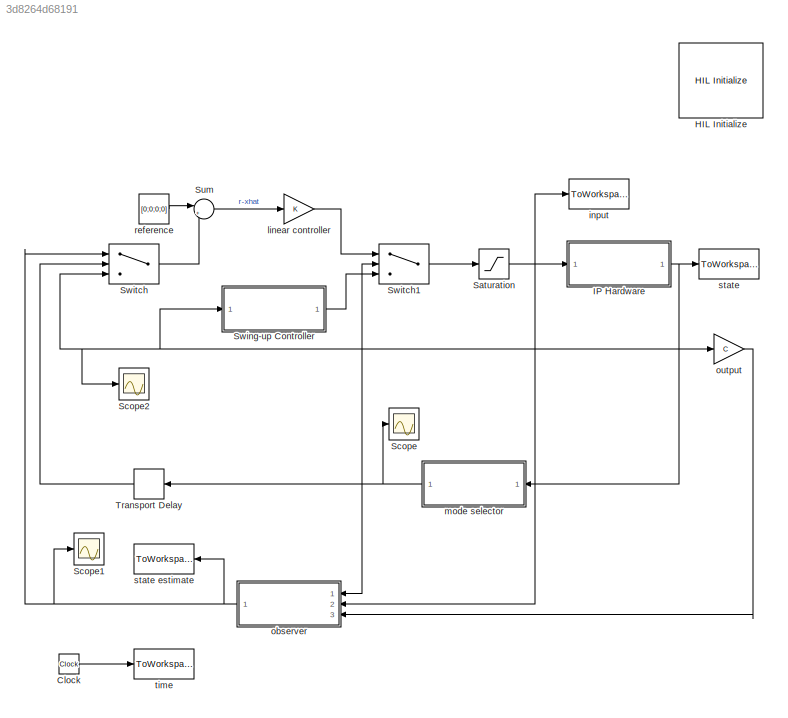
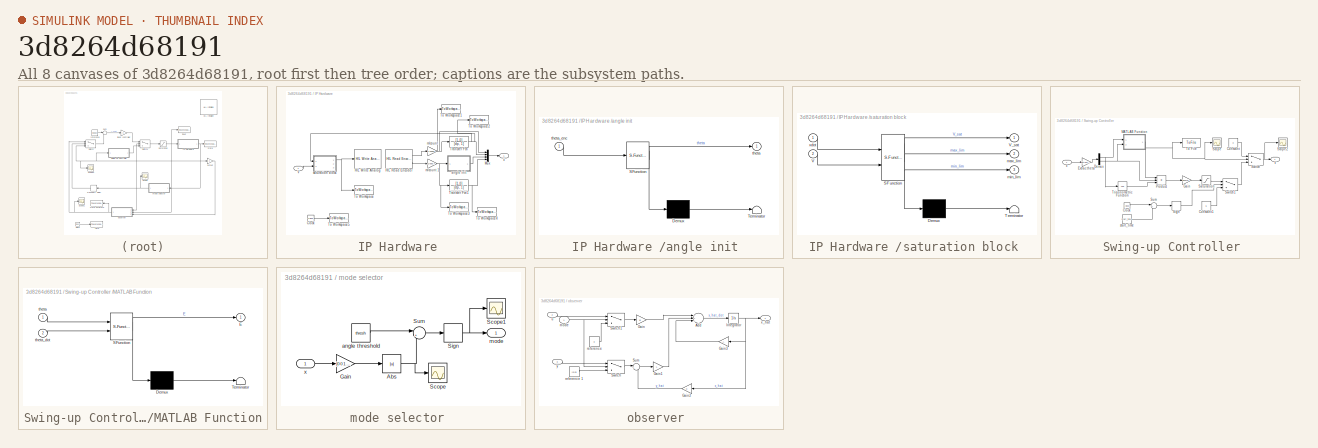
[diagram: thumbnail index - all 8 canvases of the model, root first then tree order]
MODEL slx_3d8264d68191
KIND model
BLOCK [Clock] Clock
BLOCK [Reference] HIL Initialize  REF=quarc_library/Data Acquisition/Generic/Configuration/HIL Initialize
  AttributesFormatString = %<object_name> (%<board_type>-%<board_number>)
  Ports = []
  Priority = -99
  SourceBlock = quarc_library/Data Acquisition/Generic/Configuration/HIL Initialize
  SourceType = HIL Initialize
  UserDataPersistent = on
  active = off
  analog_input_channels = [0:3]
  analog_input_maximums = 10
  analog_input_minimums = -10
  analog_output_channels = [0:3]
  analog_output_maximums = [10]
  analog_output_minimums = [-10]
  board_number = 0
  board_type = q4
  clock_modes = [0 0]
  digital_input_channels = []
  digital_output_channels = []
  digital_output_configuration = []
  encoder_channels = [0:3]
  encoder_filter_frequency = (1/60e-9)/1
  exclusive = off
  final_analog_outputs = [0]
  final_digital_outputs = [1]
  final_other_outputs = []
  final_pwm_outputs = [0]
  hardware_clocks = [0:1]
  initial_analog_outputs = [0]
  initial_clock_frequencies = []
  initial_digital_outputs = [1]
  initial_encoder_counts = [0]
  initial_other_outputs = []
  initial_pwm_outputs = [0]
  object_name = HIL-1
  other_output_channels = []
  pwm_alignment = []
  pwm_channels = []
  pwm_configuration = []
  pwm_frequency = (1/60e-9)/1024
  pwm_leading_deadband = []
  pwm_modes = [0]
  pwm_polarity = []
  pwm_trailing_deadband = []
  quadrature = [4]
  set_analog_input_params_at_start = off
  set_analog_input_params_at_switch_in = off
  set_analog_output_params_at_start = on
  set_analog_output_params_at_switch_in = off
  set_analog_outputs_at_start = on
  set_analog_outputs_at_switch_in = off
  set_analog_outputs_at_switch_out = off
  set_analog_outputs_at_terminate = on
  set_analog_outputs_on_watchdog = off
  set_clock_frequencies_at_start = off
  set_clock_frequencies_at_switch_in = off
  set_clock_params_at_start = on
  set_clock_params_at_switch_in = off
  set_digital_output_params_at_start = off
  set_digital_output_params_at_switch_in = off
  set_digital_outputs_at_start = on
  set_digital_outputs_at_switch_in = off
  set_digital_outputs_at_switch_out = off
  set_digital_outputs_at_terminate = on
  set_digital_outputs_on_watchdog = off
  set_encoder_counts_at_start = on
  set_encoder_counts_at_switch_in = off
  set_encoder_params_at_start = on
  set_encoder_params_at_switch_in = off
  set_other_outputs_at_start = off
  set_other_outputs_at_switch_in = off
  set_other_outputs_at_switch_out = off
  set_other_outputs_at_terminate = off
  set_other_outputs_on_watchdog = off
  set_pwm_outputs_at_start = on
  set_pwm_outputs_at_switch_in = off
  set_pwm_outputs_at_switch_out = off
  set_pwm_outputs_at_terminate = on
  set_pwm_outputs_on_watchdog = off
  set_pwm_params_at_start = on
  set_pwm_params_at_switch_in = off
  watchdog_analog_outputs = 0
  watchdog_digital_outputs = [2]
  watchdog_other_outputs = []
  watchdog_pwm_outputs = []
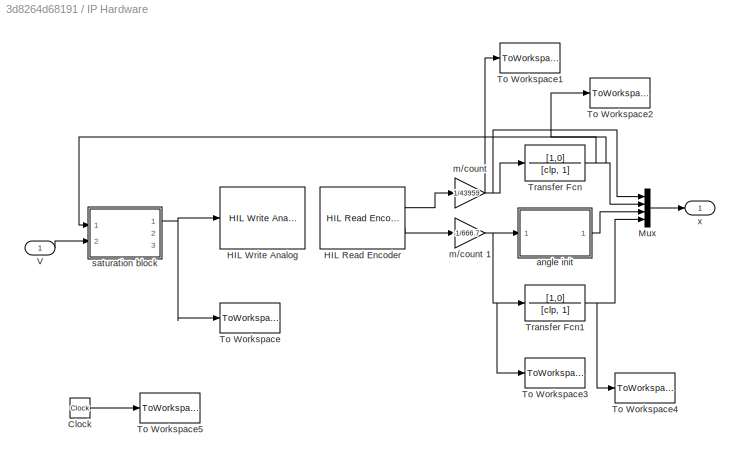
BLOCK [SubSystem] IP Hardware 
  FunctionWithSeparateData = off
  MaskHideContents = off
  MinAlgLoopOccurrences = off
  Opaque = off
  Ports = [1, 1]
  PropExecContextOutsideSubsystem = off
  RTWSystemCode = Auto
  RequestExecContextInheritance = off
BLOCK [Clock] IP Hardware /Clock
BLOCK [Reference] IP Hardware /HIL Read Encoder  REF=quarc_library/Data Acquisition/Generic/Immediate I//O/HIL Read Encoder
  AttributesFormatString = (%<object_name>)
  Ports = [0, 2]
  SourceBlock = quarc_library/Data Acquisition/Generic/Immediate I//O/HIL Read Encoder
  SourceType = HIL Read Encoder
  UserDataPersistent = on
  active = on
  channels = [0,1]
  data_type = double
  data_type_mode = Inherit via back propagation
  object_name = HIL-1
  sample_time = qc_get_step_size
  vector_output = off
BLOCK [Reference] IP Hardware /HIL Write Analog  REF=quarc_library/Data Acquisition/Generic/Immediate I//O/HIL Write Analog
  AttributesFormatString = (%<object_name>)
  Ports = [1]
  SourceBlock = quarc_library/Data Acquisition/Generic/Immediate I//O/HIL Write Analog
  SourceType = HIL Write Analog
  UserDataPersistent = on
  active = off
  channels = 0
  object_name = HIL-1
  sample_time = -1
  vector_input = off
BLOCK [Mux] IP Hardware /Mux
  DisplayOption = bar
  Ports = [4, 1]
BLOCK [ToWorkspace] IP Hardware /To Workspace
  MaxDataPoints = inf
  Ports = [1]
  SampleTime = -1
  VariableName = u
BLOCK [ToWorkspace] IP Hardware /To Workspace1
  MaxDataPoints = inf
  Ports = [1]
  SampleTime = -1
  VariableName = x
BLOCK [ToWorkspace] IP Hardware /To Workspace2
  MaxDataPoints = inf
  Ports = [1]
  SampleTime = -1
  VariableName = x_dot
BLOCK [ToWorkspace] IP Hardware /To Workspace3
  MaxDataPoints = inf
  Ports = [1]
  SampleTime = -1
  VariableName = theta
BLOCK [ToWorkspace] IP Hardware /To Workspace4
  MaxDataPoints = inf
  Ports = [1]
  SampleTime = -1
  VariableName = theta_dot
BLOCK [ToWorkspace] IP Hardware /To Workspace5
  MaxDataPoints = inf
  Ports = [1]
  SampleTime = -1
  VariableName = t
BLOCK [TransferFcn] IP Hardware /Transfer Fcn
  Denominator = [clp, 1]
  Numerator = [1,0]
BLOCK [TransferFcn] IP Hardware /Transfer Fcn1
  Denominator = [clp, 1]
  Numerator = [1,0]
BLOCK [Inport] IP Hardware /V
  IconDisplay = Port number
BLOCK [SubSystem] IP Hardware /angle init 
  ErrorFcn = Stateflow.Translate.translate
  FunctionWithSeparateData = off
  MaskHideContents = off
  MinAlgLoopOccurrences = off
  Opaque = off
  PermitHierarchicalResolution = ExplicitOnly
  Ports = [1, 1]
  PropExecContextOutsideSubsystem = off
  RTWSystemCode = Auto
  RequestExecContextInheritance = off
  SFBlockType = MATLAB Function
  TreatAsAtomicUnit = on
BLOCK [Demux] IP Hardware /angle init / Demux 
  Outputs = 1
  Ports = [1, 1]
BLOCK [S-Function] IP Hardware /angle init / SFunction 
  EnableBusSupport = on
  FunctionName = sf_sfun
  PortCounts = [1 2]
  Ports = [1, 2]
  Tag = Stateflow S-Function lab6d_dynamics 1
BLOCK [Terminator] IP Hardware /angle init / Terminator 
BLOCK [Outport] IP Hardware /angle init /theta
  IconDisplay = Port number
BLOCK [Inport] IP Hardware /angle init /theta_enc
  IconDisplay = Port number
BLOCK [Gain] IP Hardware /m//count 
  Gain = 1/43959
  OutDataTypeStr = Inherit: Inherit via internal rule
  ParamDataTypeStr = Inherit: Inherit via internal rule
  SaturateOnIntegerOverflow = off
BLOCK [Gain] IP Hardware /m//count 1
  Gain = -1/666.7
  OutDataTypeStr = Inherit: Inherit via internal rule
  ParamDataTypeStr = Inherit: Inherit via internal rule
  SaturateOnIntegerOverflow = off
BLOCK [SubSystem] IP Hardware /saturation block 
  ErrorFcn = Stateflow.Translate.translate
  FunctionWithSeparateData = off
  MaskHideContents = off
  MinAlgLoopOccurrences = off
  Opaque = off
  PermitHierarchicalResolution = ExplicitOnly
  Ports = [2, 3]
  PropExecContextOutsideSubsystem = off
  RTWSystemCode = Auto
  RequestExecContextInheritance = off
  SFBlockType = MATLAB Function
  TreatAsAtomicUnit = on
BLOCK [Demux] IP Hardware /saturation block / Demux 
  Outputs = 1
  Ports = [1, 1]
BLOCK [S-Function] IP Hardware /saturation block / SFunction 
  EnableBusSupport = on
  FunctionName = sf_sfun
  PortCounts = [2 4]
  Ports = [2, 4]
  Tag = Stateflow S-Function lab6d_dynamics 2
BLOCK [Terminator] IP Hardware /saturation block / Terminator 
BLOCK [Inport] IP Hardware /saturation block /V
  IconDisplay = Port number
  Port = 2
BLOCK [Outport] IP Hardware /saturation block /V_sat
  IconDisplay = Port number
BLOCK [Outport] IP Hardware /saturation block /max_lim
  IconDisplay = Port number
  Port = 2
BLOCK [Outport] IP Hardware /saturation block /min_lim
  IconDisplay = Port number
  Port = 3
BLOCK [Inport] IP Hardware /saturation block /xdot
  IconDisplay = Port number
BLOCK [Outport] IP Hardware /x 
  IconDisplay = Port number
BLOCK [Saturate] Saturation
  InputPortMap = u0
  LowerLimit = -6
  Ports = [1, 1]
  UpperLimit = 6
BLOCK [Scope] Scope
  DataFormat = StructureWithTime
  Floating = off
  NumInputPorts = 1
  Ports = [1]
  SampleTime = 0
  SaveName = ScopeData1
  ShowLegends = off
  YMax = -0.95
  YMin = -1.05
BLOCK [Scope] Scope1
  DataFormat = StructureWithTime
  Floating = off
  NumInputPorts = 1
  Ports = [1]
  SampleTime = 0
  SaveName = ScopeData5
  ShowLegends = off
  YMax = 12.5
  YMin = -12.5
BLOCK [Scope] Scope2
  DataFormat = StructureWithTime
  Floating = off
  NumInputPorts = 1
  Ports = [1]
  SampleTime = 0
  SaveName = ScopeData6
  ShowLegends = off
  YMax = 10
  YMin = -10
BLOCK [Sum] Sum
  IconShape = round
  InputSameDT = off
  Inputs = |+-
  OutDataTypeStr = Inherit: Inherit via internal rule
  Ports = [2, 1]
  SaturateOnIntegerOverflow = off
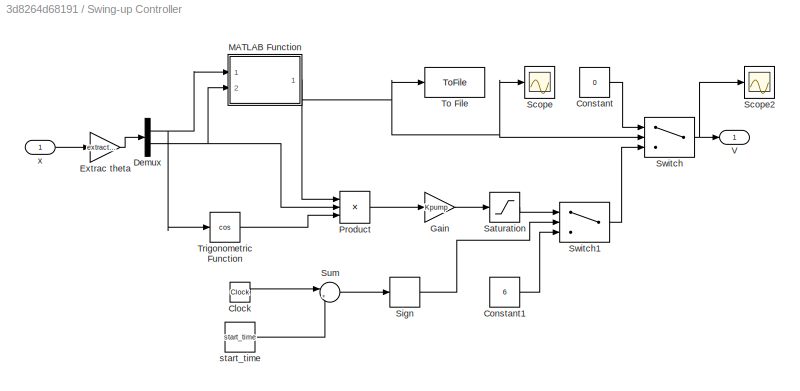
BLOCK [SubSystem] Swing-up Controller 
  FunctionWithSeparateData = off
  MaskHideContents = off
  MinAlgLoopOccurrences = off
  Opaque = off
  Ports = [1, 1]
  PropExecContextOutsideSubsystem = off
  RTWSystemCode = Auto
  RequestExecContextInheritance = off
BLOCK [Clock] Swing-up Controller /Clock
BLOCK [Constant] Swing-up Controller /Constant
  Value = 0
BLOCK [Constant] Swing-up Controller /Constant1
  Value = 6
BLOCK [Demux] Swing-up Controller /Demux
  DisplayOption = bar
  Outputs = 2
  Ports = [1, 2]
BLOCK [Gain] Swing-up Controller /Extrac theta
  Gain = extract_theta
  Multiplication = Matrix(K*u)
  OutDataTypeStr = Inherit: Inherit via internal rule
  ParamDataTypeStr = Inherit: Inherit via internal rule
  SaturateOnIntegerOverflow = off
BLOCK [Gain] Swing-up Controller /Gain
  Gain = Kpump
  OutDataTypeStr = Inherit: Inherit via internal rule
  ParamDataTypeStr = Inherit: Inherit via internal rule
  SaturateOnIntegerOverflow = off
BLOCK [SubSystem] Swing-up Controller /MATLAB Function
  ErrorFcn = Stateflow.Translate.translate
  FunctionWithSeparateData = off
  MaskHideContents = off
  MinAlgLoopOccurrences = off
  Opaque = off
  PermitHierarchicalResolution = ExplicitOnly
  Ports = [2, 1]
  PropExecContextOutsideSubsystem = off
  RTWSystemCode = Auto
  RequestExecContextInheritance = off
  SFBlockType = MATLAB Function
  TreatAsAtomicUnit = on
BLOCK [Demux] Swing-up Controller /MATLAB Function/ Demux 
  Outputs = 1
  Ports = [1, 1]
BLOCK [S-Function] Swing-up Controller /MATLAB Function/ SFunction 
  EnableBusSupport = on
  FunctionName = sf_sfun
  PortCounts = [2 2]
  Ports = [2, 2]
  Tag = Stateflow S-Function lab6d_dynamics 3
BLOCK [Terminator] Swing-up Controller /MATLAB Function/ Terminator 
BLOCK [Outport] Swing-up Controller /MATLAB Function/E
  IconDisplay = Port number
BLOCK [Inport] Swing-up Controller /MATLAB Function/theta
  IconDisplay = Port number
BLOCK [Inport] Swing-up Controller /MATLAB Function/theta_dot
  IconDisplay = Port number
  Port = 2
BLOCK [Product] Swing-up Controller /Product
  InputSameDT = off
  Inputs = 3
  OutDataTypeStr = Inherit: Inherit via internal rule
  Ports = [3, 1]
  RndMeth = Floor
  SaturateOnIntegerOverflow = off
BLOCK [Saturate] Swing-up Controller /Saturation
  InputPortMap = u0
  LowerLimit = -6
  Ports = [1, 1]
  UpperLimit = 6
BLOCK [Scope] Swing-up Controller /Scope
  DataFormat = StructureWithTime
  Floating = off
  NumInputPorts = 1
  Ports = [1]
  SampleTime = 0
  ShowLegends = off
BLOCK [Scope] Swing-up Controller /Scope2
  DataFormat = StructureWithTime
  Floating = off
  NumInputPorts = 1
  Ports = [1]
  SampleTime = 0
  SaveName = ScopeData2
  ShowLegends = off
BLOCK [Signum] Swing-up Controller /Sign
BLOCK [Sum] Swing-up Controller /Sum
  IconShape = round
  InputSameDT = off
  Inputs = |+-
  OutDataTypeStr = Inherit: Inherit via internal rule
  Ports = [2, 1]
  SaturateOnIntegerOverflow = off
BLOCK [Switch] Swing-up Controller /Switch
  InputSameDT = off
  SaturateOnIntegerOverflow = off
BLOCK [Switch] Swing-up Controller /Switch1
  InputSameDT = off
  SaturateOnIntegerOverflow = off
BLOCK [ToFile] Swing-up Controller /To File
  Filename = energy.mat
  MatrixName = E
  Ports = [1]
BLOCK [Trigonometry] Swing-up Controller /Trigonometric Function
  Operator = cos
  Ports = [1, 1]
BLOCK [Outport] Swing-up Controller /V 
  IconDisplay = Port number
BLOCK [Constant] Swing-up Controller /start_time 
  Value = start_time
BLOCK [Inport] Swing-up Controller /x 
  IconDisplay = Port number
BLOCK [Switch] Switch
  InputSameDT = off
  SaturateOnIntegerOverflow = off
BLOCK [Switch] Switch1
  InputSameDT = off
  SaturateOnIntegerOverflow = off
BLOCK [TransportDelay] Transport Delay
  DelayTime = .002
  Ports = [1, 1]
BLOCK [ToWorkspace] input 
  MaxDataPoints = inf
  Ports = [1]
  SampleTime = -1
  SaveFormat = Timeseries
  VariableName = u
BLOCK [Gain] linear controller
  Gain = K
  Multiplication = Matrix(K*u)
  OutDataTypeStr = Inherit: Inherit via internal rule
  ParamDataTypeStr = Inherit: Inherit via internal rule
  SaturateOnIntegerOverflow = off
BLOCK [SubSystem] mode selector 
  FunctionWithSeparateData = off
  MaskHideContents = off
  MinAlgLoopOccurrences = off
  Opaque = off
  Ports = [1, 1]
  PropExecContextOutsideSubsystem = off
  RTWSystemCode = Auto
  RequestExecContextInheritance = off
BLOCK [Abs] mode selector /Abs
  SaturateOnIntegerOverflow = off
BLOCK [Gain] mode selector /Gain
  Gain = [0 0 1 0]
  Multiplication = Matrix(K*u)
  OutDataTypeStr = Inherit: Inherit via internal rule
  ParamDataTypeStr = Inherit: Inherit via internal rule
  SaturateOnIntegerOverflow = off
BLOCK [Scope] mode selector /Scope
  DataFormat = StructureWithTime
  Floating = off
  NumInputPorts = 1
  Ports = [1]
  SampleTime = 0
  SaveName = ScopeData3
  ShowLegends = off
  YMax = 3.25
  YMin = 0.25
BLOCK [Scope] mode selector /Scope1
  DataFormat = StructureWithTime
  Floating = off
  NumInputPorts = 1
  Ports = [1]
  SampleTime = 0
  SaveName = ScopeData4
  ShowLegends = off
  YMax = 1
  YMin = 1
BLOCK [Signum] mode selector /Sign
BLOCK [Sum] mode selector /Sum
  IconShape = round
  InputSameDT = off
  Inputs = |+-
  OutDataTypeStr = Inherit: Inherit via internal rule
  Ports = [2, 1]
  SaturateOnIntegerOverflow = off
BLOCK [Constant] mode selector /angle threshold 
  Value = thresh
BLOCK [Outport] mode selector /mode 
  IconDisplay = Port number
BLOCK [Inport] mode selector /x 
  IconDisplay = Port number
BLOCK [SubSystem] observer 
  FunctionWithSeparateData = off
  MaskHideContents = off
  MinAlgLoopOccurrences = off
  Opaque = off
  Ports = [3, 1]
  PropExecContextOutsideSubsystem = off
  RTWSystemCode = Auto
  RequestExecContextInheritance = off
BLOCK [Sum] observer /Add
  InputSameDT = off
  Inputs = +++
  OutDataTypeStr = Inherit: Inherit via internal rule
  Ports = [3, 1]
  SaturateOnIntegerOverflow = off
BLOCK [Gain] observer /Gain
  Gain = B
  Multiplication = Matrix(K*u)
  OutDataTypeStr = Inherit: Inherit via internal rule
  ParamDataTypeStr = Inherit: Inherit via internal rule
  SaturateOnIntegerOverflow = off
BLOCK [Gain] observer /Gain1
  Gain = L
  Multiplication = Matrix(K*u)
  OutDataTypeStr = Inherit: Inherit via internal rule
  ParamDataTypeStr = Inherit: Inherit via internal rule
  SaturateOnIntegerOverflow = off
BLOCK [Gain] observer /Gain2
  Gain = C
  Multiplication = Matrix(K*u)
  OutDataTypeStr = Inherit: Inherit via internal rule
  ParamDataTypeStr = Inherit: Inherit via internal rule
  SaturateOnIntegerOverflow = off
BLOCK [Gain] observer /Gain3
  Gain = A
  Multiplication = Matrix(K*u)
  OutDataTypeStr = Inherit: Inherit via internal rule
  ParamDataTypeStr = Inherit: Inherit via internal rule
  SaturateOnIntegerOverflow = off
BLOCK [Integrator] observer /Integrator
  Ports = [1, 1]
BLOCK [Sum] observer /Sum
  IconShape = round
  InputSameDT = off
  Inputs = |+-
  OutDataTypeStr = Inherit: Inherit via internal rule
  Ports = [2, 1]
  SaturateOnIntegerOverflow = off
BLOCK [Switch] observer /Switch
  InputSameDT = off
  SaturateOnIntegerOverflow = off
BLOCK [Switch] observer /Switch1
  InputSameDT = off
  SaturateOnIntegerOverflow = off
BLOCK [Inport] observer /mode 
  IconDisplay = Port number
BLOCK [Constant] observer /reference 
  Value = 0
BLOCK [Constant] observer /reference 1
  Value = [0;0]
BLOCK [Inport] observer /u 
  IconDisplay = Port number
  Port = 2
BLOCK [Outport] observer /x_hat 
  IconDisplay = Port number
BLOCK [Inport] observer /y 
  IconDisplay = Port number
  Port = 3
BLOCK [Gain] output 
  Gain = C
  Multiplication = Matrix(K*u)
  OutDataTypeStr = Inherit: Inherit via internal rule
  ParamDataTypeStr = Inherit: Inherit via internal rule
  SaturateOnIntegerOverflow = off
BLOCK [Constant] reference 
  Value = [0;0;0;0]
BLOCK [ToWorkspace] state 
  MaxDataPoints = inf
  Ports = [1]
  SampleTime = -1
  SaveFormat = Timeseries
  VariableName = x
BLOCK [ToWorkspace] state estimate 
  MaxDataPoints = inf
  Ports = [1]
  SampleTime = -1
  SaveFormat = Timeseries
  VariableName = x_hat
BLOCK [ToWorkspace] time 
  MaxDataPoints = inf
  Ports = [1]
  SampleTime = -1
  SaveFormat = Timeseries
  VariableName = t
LINE Clock:1 -> time :1
LINE IP Hardware /Clock:1 -> IP Hardware /To Workspace5:1
LINE IP Hardware /HIL Read Encoder:1 -> IP Hardware /m//count :1
LINE IP Hardware /HIL Read Encoder:2 -> IP Hardware /m//count 1:1
LINE IP Hardware /Mux:1 -> IP Hardware /x :1
NET IP Hardware /Transfer Fcn1:1 -> IP Hardware /Mux:4, IP Hardware /To Workspace4:1
NET IP Hardware /Transfer Fcn:1 -> IP Hardware /Mux:2, IP Hardware /To Workspace2:1, IP Hardware /saturation block :1
LINE IP Hardware /V:1 -> IP Hardware /saturation block :2
LINE IP Hardware /angle init :1 -> IP Hardware /Mux:3
NET IP Hardware /m//count 1:1 -> IP Hardware /To Workspace3:1, IP Hardware /Transfer Fcn1:1, IP Hardware /angle init :1
NET IP Hardware /m//count :1 -> IP Hardware /Mux:1, IP Hardware /To Workspace1:1, IP Hardware /Transfer Fcn:1
NET IP Hardware /saturation block :1 -> IP Hardware /HIL Write Analog:1, IP Hardware /To Workspace:1
NET IP Hardware :1 -> Scope2:1, Swing-up Controller :1, Switch:3, mode selector :1, output :1, state :1
NET Saturation:1 -> IP Hardware :1, input :1, observer :2
LINE Sum:1 -> linear controller:1
LINE Swing-up Controller /Clock:1 -> Swing-up Controller /Sum:1
LINE Swing-up Controller /Constant1:1 -> Swing-up Controller /Switch1:3
LINE Swing-up Controller /Constant:1 -> Swing-up Controller /Switch:1
NET Swing-up Controller /Demux:1 -> Swing-up Controller /MATLAB Function:1, Swing-up Controller /Trigonometric Function:1
NET Swing-up Controller /Demux:2 -> Swing-up Controller /MATLAB Function:2, Swing-up Controller /Product:2
LINE Swing-up Controller /Extrac theta:1 -> Swing-up Controller /Demux:1
LINE Swing-up Controller /Gain:1 -> Swing-up Controller /Saturation:1
NET Swing-up Controller /MATLAB Function:1 -> Swing-up Controller /Product:1, Swing-up Controller /Scope:1, Swing-up Controller /Switch:2, Swing-up Controller /To File:1
LINE Swing-up Controller /Product:1 -> Swing-up Controller /Gain:1
LINE Swing-up Controller /Saturation:1 -> Swing-up Controller /Switch1:1
LINE Swing-up Controller /Sign:1 -> Swing-up Controller /Switch1:2
LINE Swing-up Controller /Sum:1 -> Swing-up Controller /Sign:1
LINE Swing-up Controller /Switch1:1 -> Swing-up Controller /Switch:3
NET Swing-up Controller /Switch:1 -> Swing-up Controller /Scope2:1, Swing-up Controller /V :1
LINE Swing-up Controller /Trigonometric Function:1 -> Swing-up Controller /Product:3
LINE Swing-up Controller /start_time :1 -> Swing-up Controller /Sum:2
LINE Swing-up Controller /x :1 -> Swing-up Controller /Extrac theta:1
LINE Swing-up Controller :1 -> Switch1:3
LINE Switch1:1 -> Saturation:1
LINE Switch:1 -> Sum:2
LINE Transport Delay:1 -> Switch:2
LINE linear controller:1 -> Switch1:1
NET mode selector /Abs:1 -> mode selector /Scope:1, mode selector /Sum:2
LINE mode selector /Gain:1 -> mode selector /Abs:1
NET mode selector /Sign:1 -> mode selector /Scope1:1, mode selector /mode :1
LINE mode selector /Sum:1 -> mode selector /Sign:1
LINE mode selector /angle threshold :1 -> mode selector /Sum:1
LINE mode selector /x :1 -> mode selector /Gain:1
NET mode selector :1 -> Scope:1, Switch1:2, Transport Delay:1, observer :1
LINE observer /Add:1 -> observer /Integrator:1
LINE observer /Gain1:1 -> observer /Add:2
LINE observer /Gain2:1 -> observer /Sum:2
LINE observer /Gain3:1 -> observer /Add:3
LINE observer /Gain:1 -> observer /Add:1
NET observer /Integrator:1 -> observer /Gain2:1, observer /Gain3:1, observer /x_hat :1
LINE observer /Sum:1 -> observer /Gain1:1
LINE observer /Switch1:1 -> observer /Gain:1
LINE observer /Switch:1 -> observer /Sum:1
NET observer /mode :1 -> observer /Switch1:2, observer /Switch:2
LINE observer /reference 1:1 -> observer /Switch:3
LINE observer /reference :1 -> observer /Switch1:3
LINE observer /u :1 -> observer /Switch1:1
LINE observer /y :1 -> observer /Switch:1
NET observer :1 -> Scope1:1, Switch:1, state estimate :1
LINE output :1 -> observer :3
LINE reference :1 -> Sum:1
note: NET lines group one-source signal fan-out (src -> all destinations, sorted); 1:1 wires keep LINE
